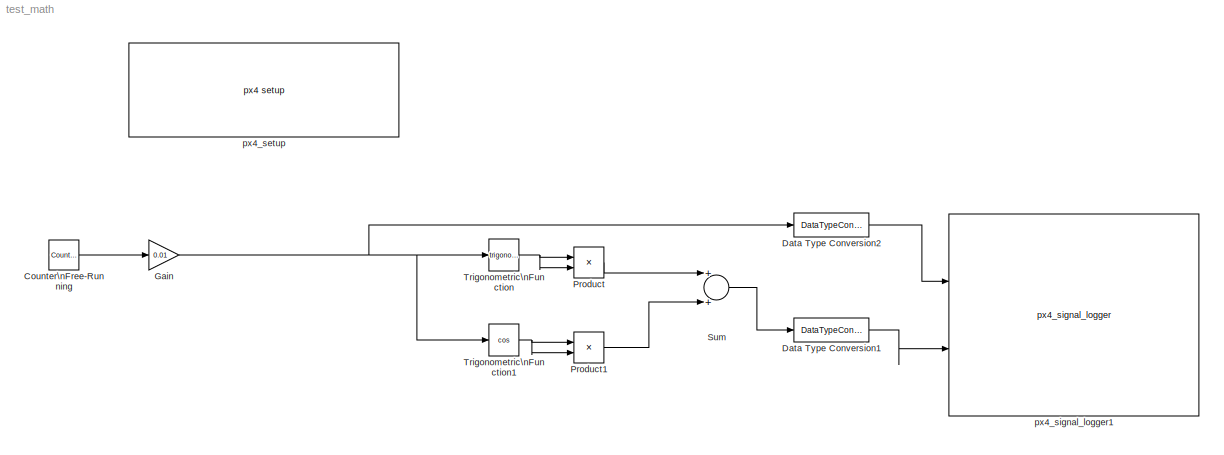
MODEL test_math
KIND model
CONFIG InitFcn = px4_ap1_mdl_callback('check_model');
BLOCK [Reference] Counter\nFree-Running  REF=simulink/Sources/Counter\nFree-Running
  NumBits = 16
  Ports = [0, 1]
  SID = 1
  SourceBlock = simulink/Sources/Counter\nFree-Running
  SourceType = Counter Free-Running
  tsamp = -1
BLOCK [DataTypeConversion] Data Type Conversion1
  RndMeth = Floor
  SID = 10
  SaturateOnIntegerOverflow = off
BLOCK [DataTypeConversion] Data Type Conversion2
  RndMeth = Floor
  SID = 32
  SaturateOnIntegerOverflow = off
BLOCK [Gain] Gain
  Gain = 0.01
  OutDataTypeStr = double
  ParamDataTypeStr = Inherit: Inherit via internal rule
  SID = 12
  SaturateOnIntegerOverflow = off
BLOCK [Product] Product
  InputSameDT = off
  OutDataTypeStr = Inherit: Inherit via internal rule
  Ports = [2, 1]
  RndMeth = Floor
  SID = 27
  SaturateOnIntegerOverflow = off
BLOCK [Product] Product1
  InputSameDT = off
  OutDataTypeStr = Inherit: Inherit via internal rule
  Ports = [2, 1]
  RndMeth = Floor
  SID = 29
  SaturateOnIntegerOverflow = off
BLOCK [Sum] Sum
  InputSameDT = off
  OutDataTypeStr = Inherit: Inherit via internal rule
  Ports = [2, 1]
  SID = 30
  SaturateOnIntegerOverflow = off
BLOCK [Trigonometry] Trigonometric\nFunction
  Ports = [1, 1]
  SID = 8
BLOCK [Trigonometry] Trigonometric\nFunction1
  Operator = cos
  Ports = [1, 1]
  SID = 26
BLOCK [Reference] px4_setup  REF=px4_ap1_px4setup_lib/px4 setup
  Ports = []
  SID = 5
  SampleTimeValue = 0.01
  SourceBlock = px4_ap1_px4setup_lib/px4 setup
  SourceType = PX4_Target_Setup
  cbBuild = on
  cbPort = COM3
  cbUpload = off
  cpuLoad = off
  debugmode = off
BLOCK [Reference] px4_signal_logger1  REF=px4_ap1_signal_output_lib/px4_signal_logger
  Description = Setup for PX4 native software
  Ports = [2]
  SID = 6
  SourceBlock = px4_ap1_signal_output_lib/px4_signal_logger
  SourceType = PX4_SIGNAL_OUTPUT
  sampleTime = 0.635
  sigCnt = 2
LINE Counter\nFree-Running:1 -> Gain:1
LINE Data Type Conversion1:1 -> px4_signal_logger1:2
LINE Data Type Conversion2:1 -> px4_signal_logger1:1
NET Gain:1 -> Data Type Conversion2:1, Trigonometric\nFunction1:1, Trigonometric\nFunction:1
LINE Product1:1 -> Sum:2
LINE Product:1 -> Sum:1
LINE Sum:1 -> Data Type Conversion1:1
NET Trigonometric\nFunction1:1 -> Product1:1, Product1:2
NET Trigonometric\nFunction:1 -> Product:1, Product:2
note: NET lines group one-source signal fan-out (src -> all destinations, sorted); 1:1 wires keep LINE
